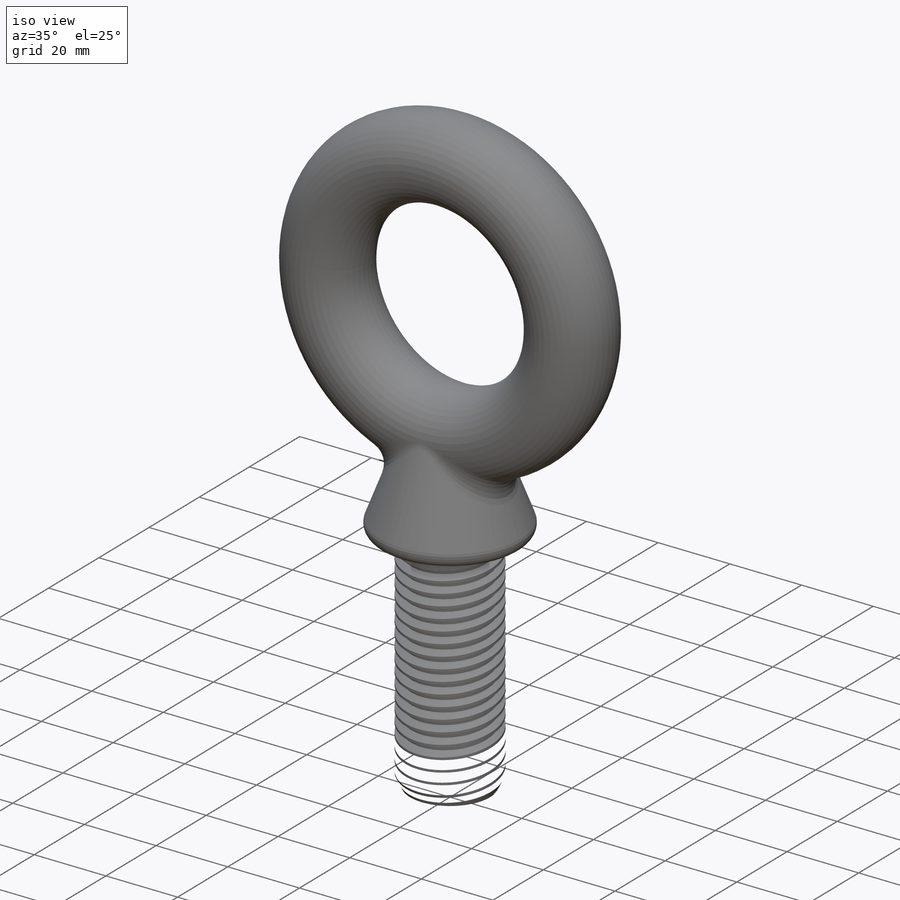
[diagram: iso view]
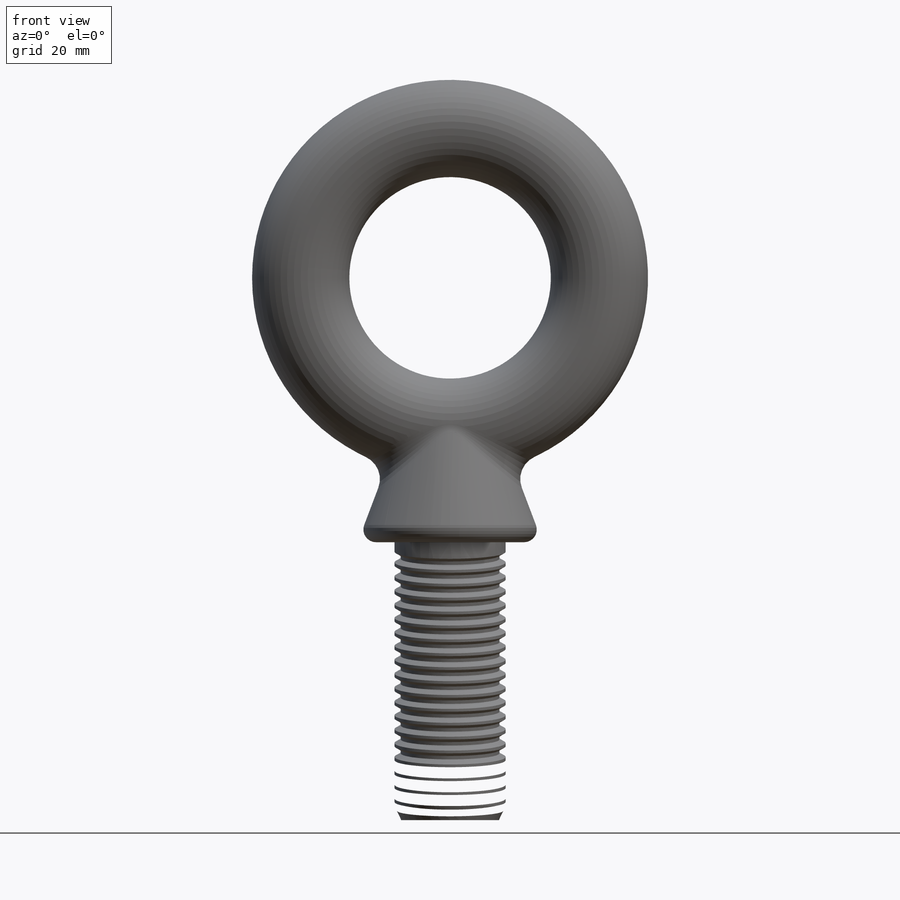
[diagram: front view]
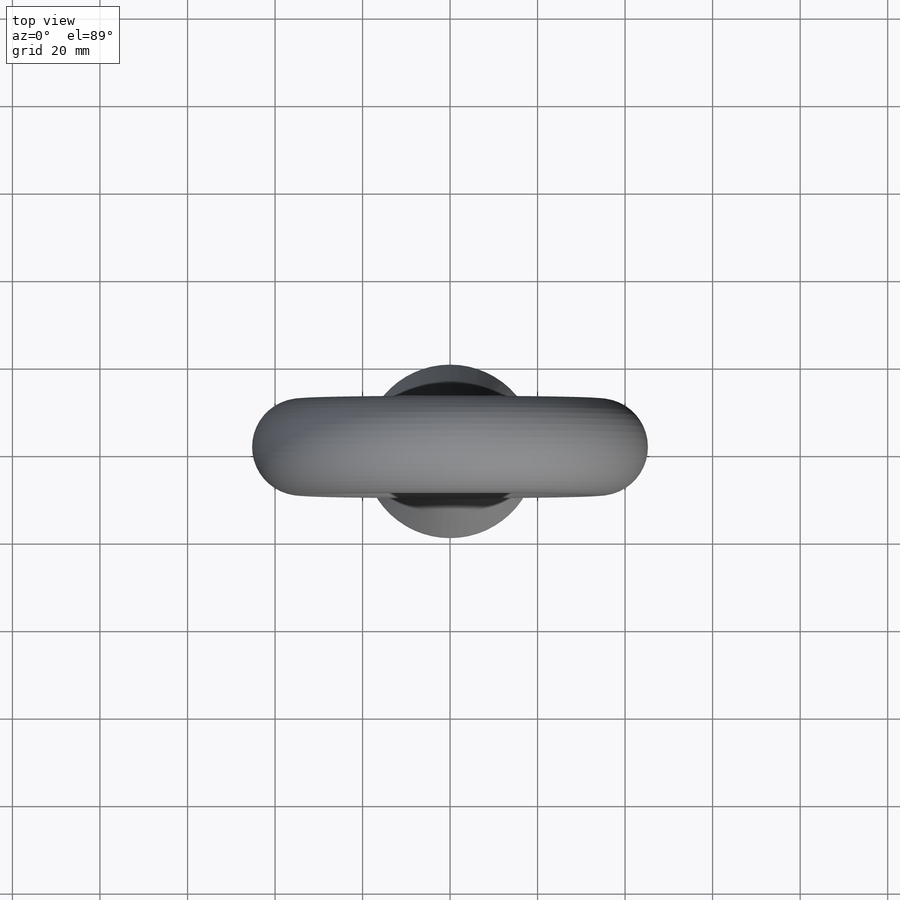
[diagram: top view]
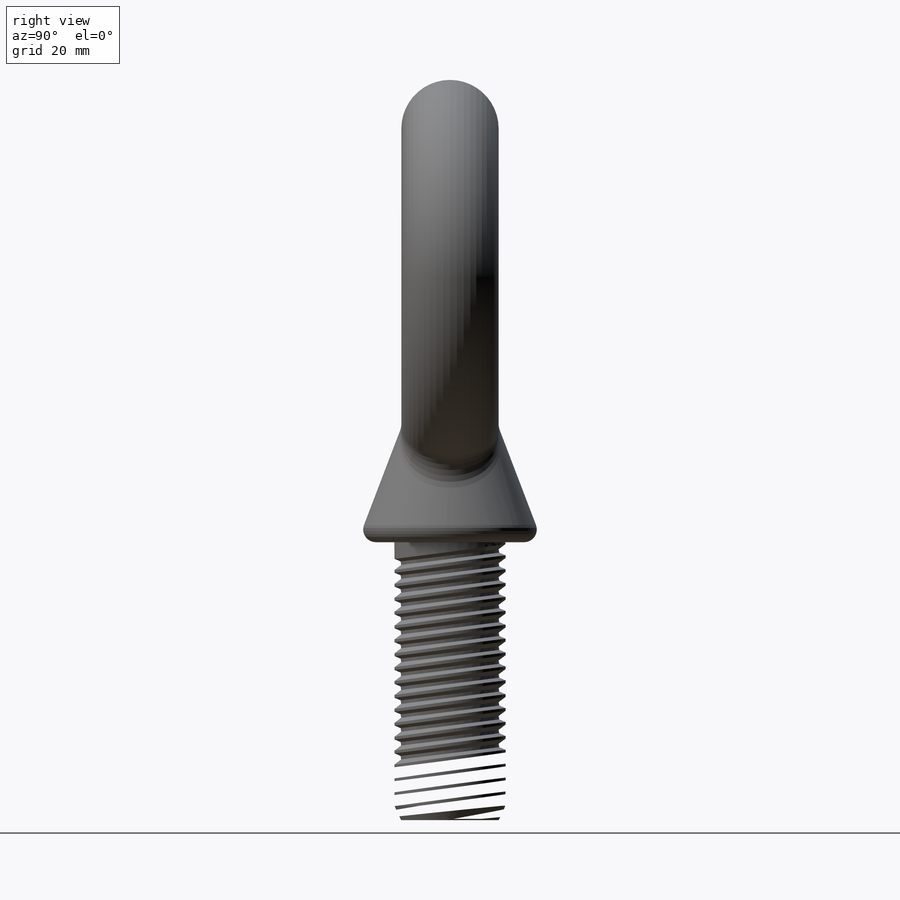
[diagram: right view]
SOLIDWORKS PART (.sldprt)
format: sldprt  version: not decoded by parser v0  size: 660,480 bytes
history: native  units: mm
features: sketch x4, revolve x2, cut_revolve x2, material x1, fillet x1, pattern_linear x1 (+14 scaffold rows collapsed)
feature tree (25):
  scaffold x14  (default folders/planes/origin — collapsed)
  material  "Material <not specified>"
  sketch  "Sketch1"  dims[c1.D1=~13.65547mm c1.D2=~13.65547mm c2.D1=22.225mm c2.D3=22.225mm c2.Eye OD=90.4875mm c2.Eye ID=46.0375mm]
  revolve  "Revolve1"  Angle=360deg
  sketch  "Sketch3"  dims[c1.D1=~34.13125mm c1.D2=~3.637366mm c1.Shoulder Dia=39.6875mm c1.Thread Dia=25.4mm c1.Overall Length=169.164mm c1.Shank Length=63.5mm c2.D1=~5.379634mm]
  revolve  "Revolve2"  Angle=360deg
  fillet  "Fillet1"  Radius=5.55625mm
  sketch  "Sketch4"  dims[c1.D1=~6.050904mm c2.D1=60.0deg c2.Thread Pitch=3.175mm c2.D2=~0.396875mm c2.D3=~0.79375mm c2.D4=3.175mm c2.Non-Thread=0.0254mm c2.Thread Length=63.5mm]
  cut_revolve  "Cut-Revolve1"  Angle=360deg
  sketch  "Sketch5"  dims[c1.D1=~5.599585mm c2.D1=25.0deg]
  cut_revolve  "Cut-Revolve2"  Angle=360deg
  pattern_linear  "LPattern1"  Count1=20 Count2=1 Spacing1=3.175mm Spacing2=50mm hex flats=14.2748mm hex flats/2=7.366mm
decode coverage: 10 of 10 modeling features carry decoded parameters
note: ~ marks probable driven/reference dimensions
note: suppression state not decoded; provenance and decode notes live in map.json
